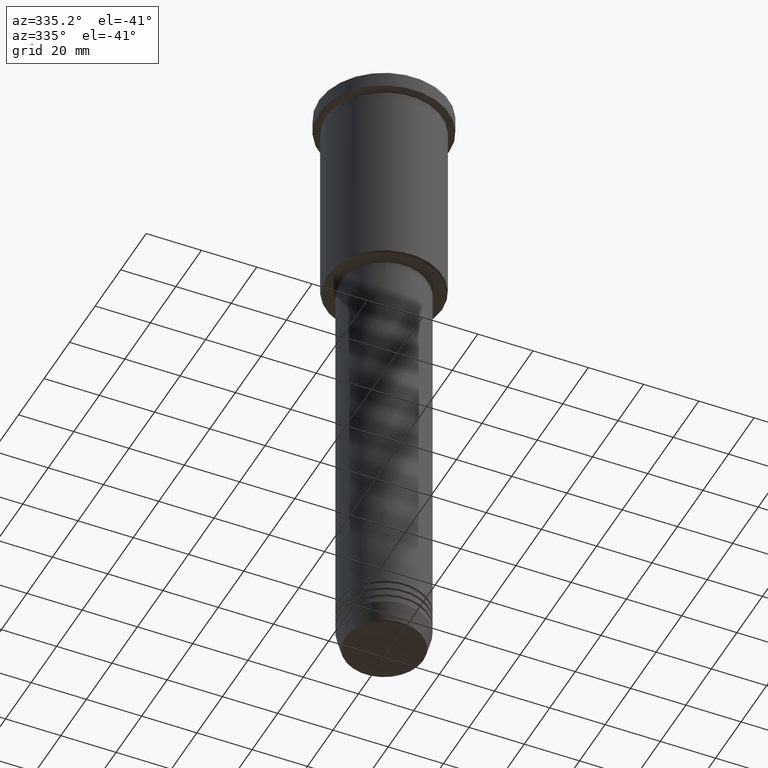
[diagram: clean part render]
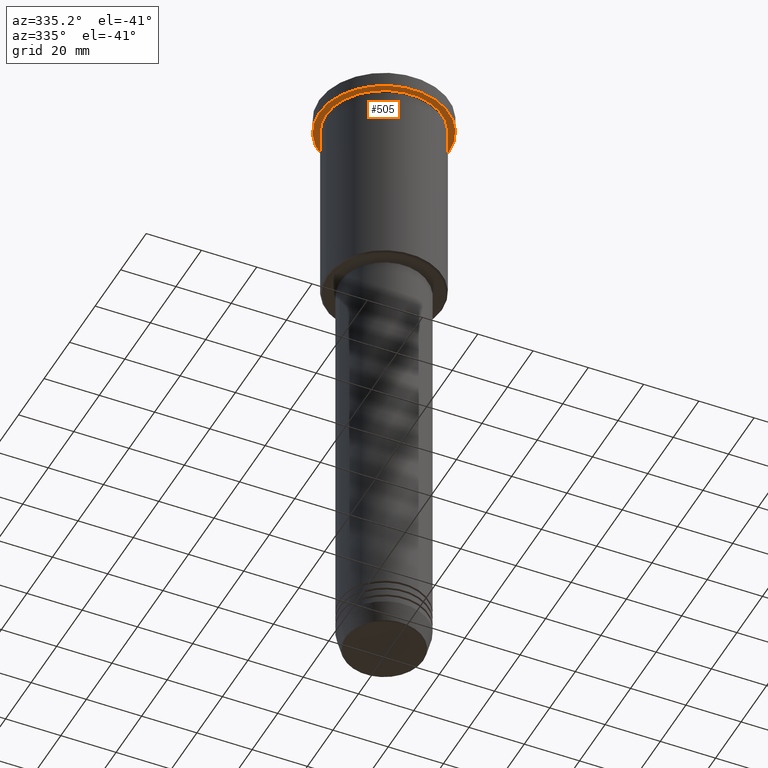
[diagram: same view with one face highlighted and labeled with its STEP entity id]
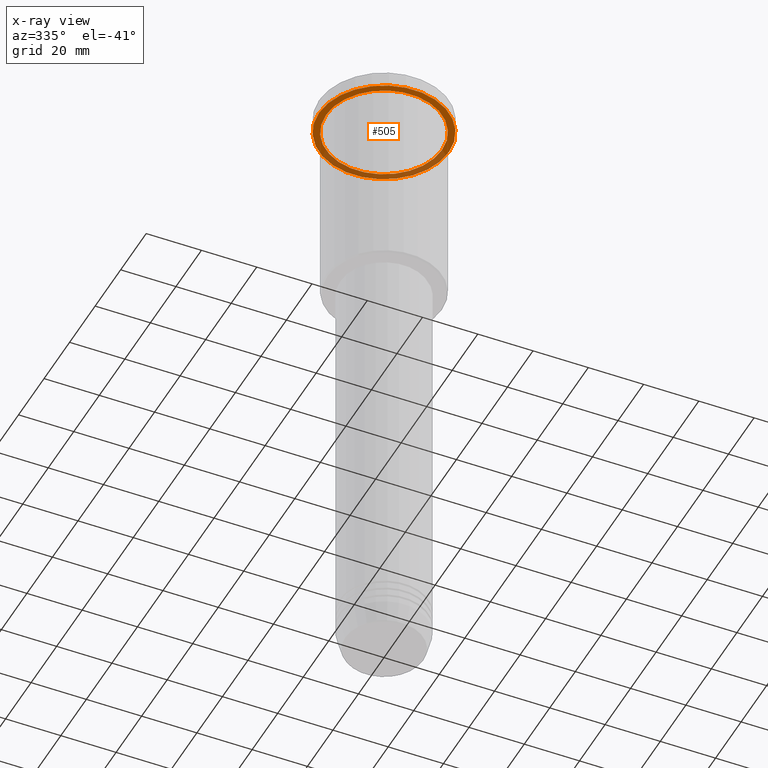
[diagram: x-ray of the same camera — body ghosted, the highlighted face saturated]
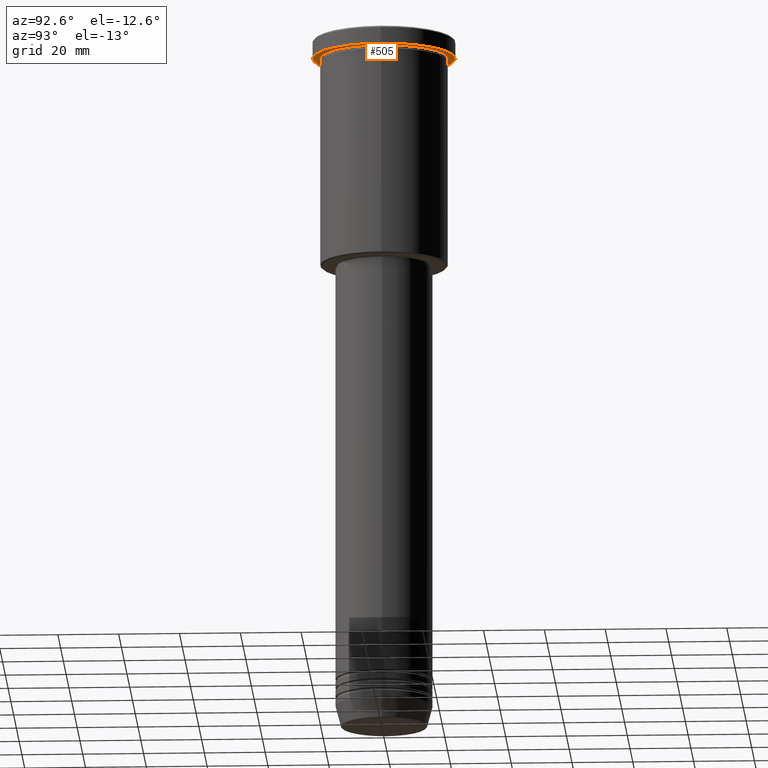
[diagram: same view with one face highlighted and labeled with its STEP entity id]
A machine part, auxiliary view. The second image highlights one B-rep face of the part: STEP entity #505.
The next image is the same camera in x-ray: the body ghosted, the highlighted face saturated — about 35% of this face is hidden behind the body in this view.
A second angle (auxiliary view) of the same face is appended — the face is thin or edge-on in the first view.
In plain terms, the highlighted planar face has unit normal (0, 0, -1).
Its self-contained STEP definition (entity closure, byte-faithful):
#22 = DIRECTION ( 'NONE',  ( -0.000000000000000000, -0.000000000000000000, 1.000000000000000000 ) ) ;
#32 = DIRECTION ( 'NONE',  ( -1.000000000000000000, 0.000000000000000000, 0.000000000000000000 ) ) ;
#40 = DIRECTION ( 'NONE',  ( -1.000000000000000000, 0.000000000000000000, -0.000000000000000000 ) ) ;
#74 = CIRCLE ( 'NONE', #168, 21.00000000000000000 ) ;
#124 = ORIENTED_EDGE ( 'NONE', *, *, #615, .F. ) ;
#168 = AXIS2_PLACEMENT_3D ( 'NONE', #853, #22, #32 ) ;
#181 = CARTESIAN_POINT ( 'NONE',  ( 23.50000000000000000, 0.000000000000000000, -5.999999999999994671 ) ) ;
#233 = AXIS2_PLACEMENT_3D ( 'NONE', #291, #600, #1153 ) ;
#279 = ORIENTED_EDGE ( 'NONE', *, *, #1027, .T. ) ;
#281 = CARTESIAN_POINT ( 'NONE',  ( 0.000000000000000000, 0.000000000000000000, -5.999999999999994671 ) ) ;
#291 = CARTESIAN_POINT ( 'NONE',  ( 0.000000000000000000, 0.000000000000000000, -5.999999999999994671 ) ) ;
#307 = FACE_OUTER_BOUND ( 'NONE', #703, .T. ) ;
#357 = CIRCLE ( 'NONE', #1061, 21.00000000000000000 ) ;
#365 = EDGE_CURVE ( 'NONE', #889, #1168, #558, .T. ) ;
#366 = CARTESIAN_POINT ( 'NONE',  ( 0.000000000000000000, 0.000000000000000000, -5.999999999999994671 ) ) ;
#438 = DIRECTION ( 'NONE',  ( -0.000000000000000000, -0.000000000000000000, 1.000000000000000000 ) ) ;
#489 = EDGE_LOOP ( 'NONE', ( #1004, #279 ) ) ;
#493 = CARTESIAN_POINT ( 'NONE',  ( 0.000000000000000000, 23.50000000000000000, -5.999999999999994671 ) ) ;
#505 = ADVANCED_FACE ( 'NONE', ( #1020, #307 ), #660, .T. ) ;
#558 = CIRCLE ( 'NONE', #976, 23.50000000000000000 ) ;
#600 = DIRECTION ( 'NONE',  ( -0.000000000000000000, -0.000000000000000000, 1.000000000000000000 ) ) ;
#605 = CARTESIAN_POINT ( 'NONE',  ( -23.50000000000000000, 2.877919977996280320E-15, -5.999999999999994671 ) ) ;
#613 = CARTESIAN_POINT ( 'NONE',  ( 21.00000000000000000, 2.571758278209441661E-15, -5.999999999999994671 ) ) ;
#615 = EDGE_CURVE ( 'NONE', #1168, #889, #1155, .T. ) ;
#644 = DIRECTION ( 'NONE',  ( -1.000000000000000000, 0.000000000000000000, 0.000000000000000000 ) ) ;
#660 = PLANE ( 'NONE',  #815 ) ;
#702 = CARTESIAN_POINT ( 'NONE',  ( -21.00000000000000000, 0.000000000000000000, -5.999999999999994671 ) ) ;
#703 = EDGE_LOOP ( 'NONE', ( #1019, #124 ) ) ;
#734 = VERTEX_POINT ( 'NONE', #613 ) ;
#786 = EDGE_CURVE ( 'NONE', #1109, #734, #357, .T. ) ;
#815 = AXIS2_PLACEMENT_3D ( 'NONE', #493, #865, #40 ) ;
#853 = CARTESIAN_POINT ( 'NONE',  ( 0.000000000000000000, 0.000000000000000000, -5.999999999999994671 ) ) ;
#865 = DIRECTION ( 'NONE',  ( 0.000000000000000000, 0.000000000000000000, -1.000000000000000000 ) ) ;
#889 = VERTEX_POINT ( 'NONE', #181 ) ;
#976 = AXIS2_PLACEMENT_3D ( 'NONE', #366, #438, #1079 ) ;
#1004 = ORIENTED_EDGE ( 'NONE', *, *, #786, .T. ) ;
#1019 = ORIENTED_EDGE ( 'NONE', *, *, #365, .F. ) ;
#1020 = FACE_BOUND ( 'NONE', #489, .T. ) ;
#1027 = EDGE_CURVE ( 'NONE', #734, #1109, #74, .T. ) ;
#1061 = AXIS2_PLACEMENT_3D ( 'NONE', #281, #1164, #644 ) ;
#1079 = DIRECTION ( 'NONE',  ( 1.000000000000000000, 0.000000000000000000, 0.000000000000000000 ) ) ;
#1109 = VERTEX_POINT ( 'NONE', #702 ) ;
#1153 = DIRECTION ( 'NONE',  ( 1.000000000000000000, 0.000000000000000000, 0.000000000000000000 ) ) ;
#1155 = CIRCLE ( 'NONE', #233, 23.50000000000000000 ) ;
#1164 = DIRECTION ( 'NONE',  ( -0.000000000000000000, -0.000000000000000000, 1.000000000000000000 ) ) ;
#1168 = VERTEX_POINT ( 'NONE', #605 ) ;